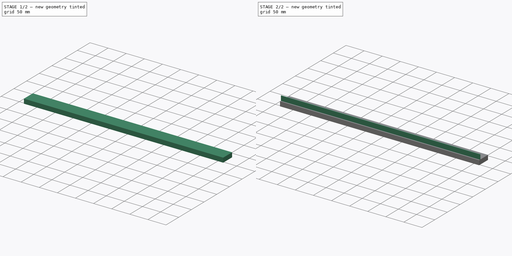
[diagram: build sequence overview — one tinted view per stage of 2, left to right]
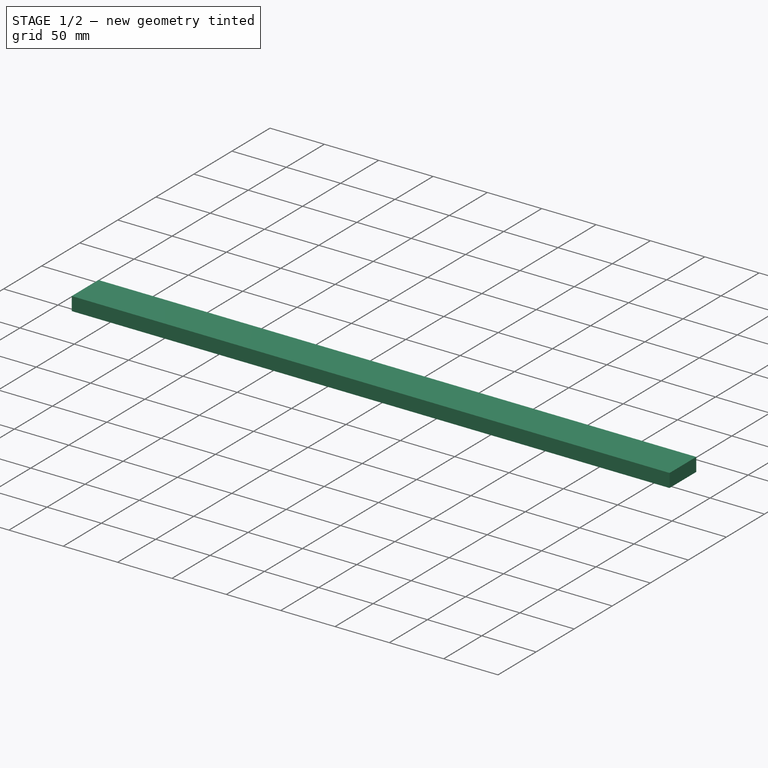
[diagram: stage 1 of 2 — iso view after this stage's code; geometry added in this stage tinted green]
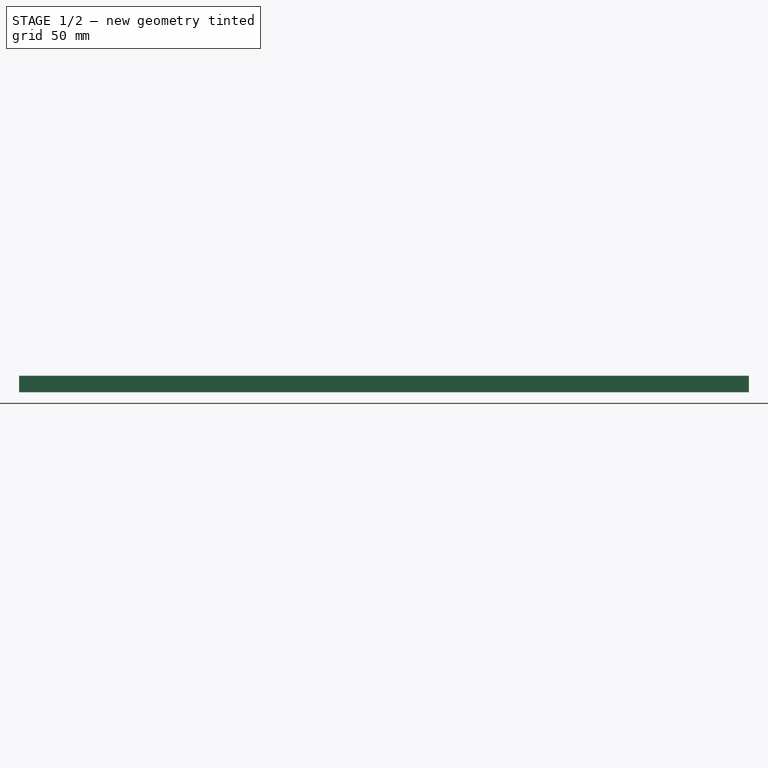
[diagram: stage 1 of 2 — front view after this stage's code; geometry added in this stage tinted green]
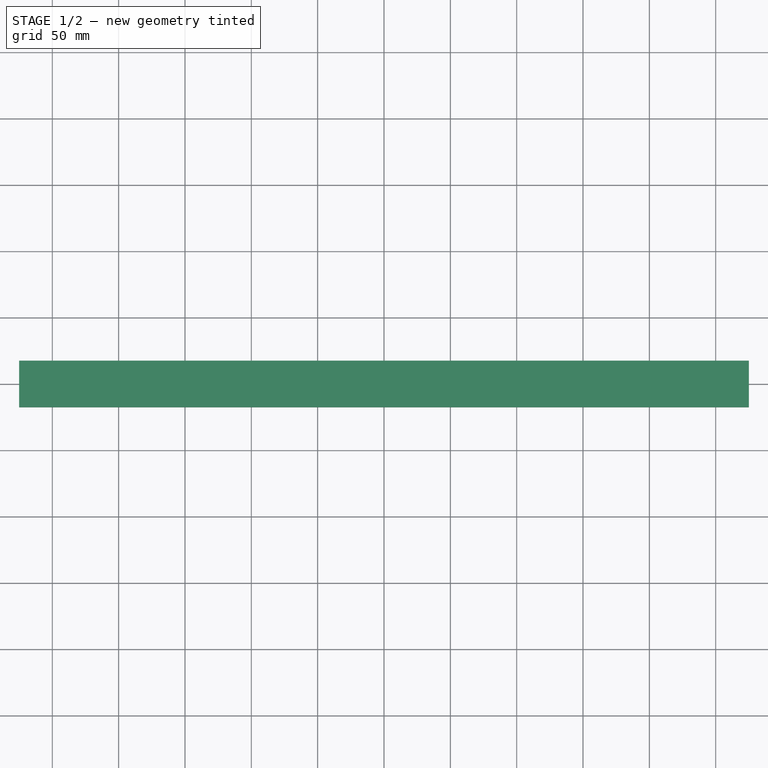
[diagram: stage 1 of 2 — top view after this stage's code; geometry added in this stage tinted green]
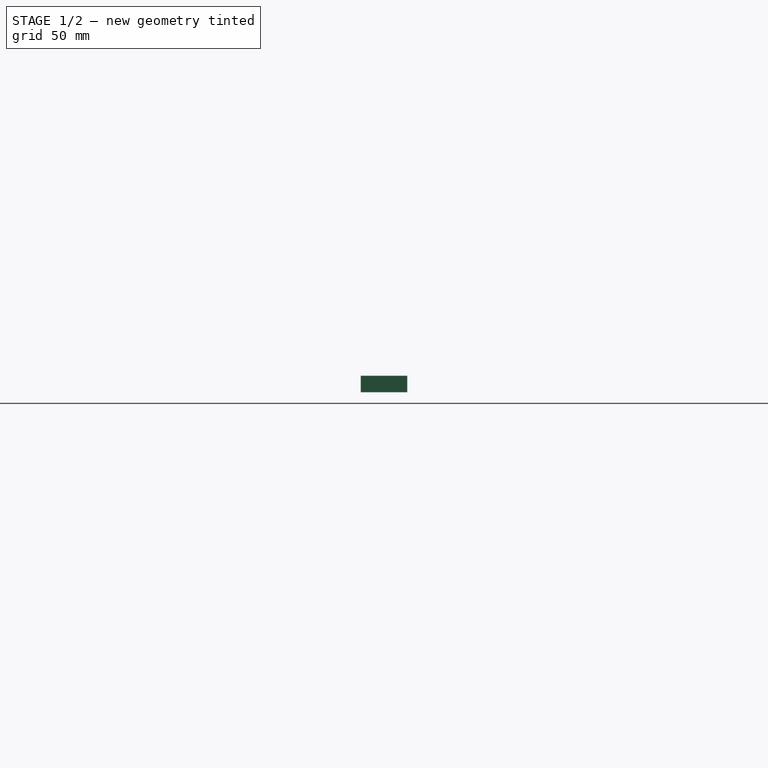
[diagram: stage 1 of 2 — right view after this stage's code; geometry added in this stage tinted green]
FCSTD DOCUMENT  (FreeCAD 1.0RUnknown)
Label: hettich_rail_550mm
Comment: https://www.hornbach.de/p/schubladenschiene-teilauszug-rollschubfuehrung-550-mm-weiss-2-stueck/2460971/
License: All rights reserved
objects: Sketcher::SketchObject×2, PartDesign::Pad×2, PartDesign::CoordinateSystem×2, PartDesign::Body×1
note: 13 computed .brp shape members not serialized (recipe doc carries the construction recipe); baked Part::Feature solids carry a one-line shape summary decoded from their .brp

FEATURE [Sketcher::SketchObject] Sketch
  ArcFitTolerance = 1e-06
  AttachmentSupport = -> [XY_Plane]
  FullyConstrained = true
  MakeInternals = false
  MapMode = 5
  sketch-geometry (5):
    g0: LineSegment StartX=-275 StartY=-17.5 StartZ=0 EndX=275 EndY=-17.5 EndZ=0
    g1: LineSegment StartX=275 StartY=-17.5 StartZ=0 EndX=275 EndY=17.5 EndZ=0
    g2: LineSegment StartX=275 StartY=17.5 StartZ=0 EndX=-275 EndY=17.5 EndZ=0
    g3: LineSegment StartX=-275 StartY=17.5 StartZ=0 EndX=-275 EndY=-17.5 EndZ=0
    g4: GeomPoint [constr] X=0 Y=0 Z=0
  constraints (12):
    c: Coincident(g0,g1)
    c: Coincident(g1,g2)
    c: Coincident(g2,g3)
    c: Coincident(g3,g0)
    c: Horizontal(g0)
    c: Horizontal(g2)
    c: Vertical(g1)
    c: Vertical(g3)
    c: Symmetric(g2,g0,g4)
    c: Distance(g1,g3) = 550
    c: Distance(g0,g2) = 35
    c: Coincident(g4,g-1)
FEATURE [PartDesign::Pad] Pad
  Direction = (0,0,1)
  Length = 12.5
  Length2 = 10
  Profile = -> Sketch
  ReferenceAxis = -> Sketch [N_Axis]
  Refine = true
  Suppressed = false
  Type = 0
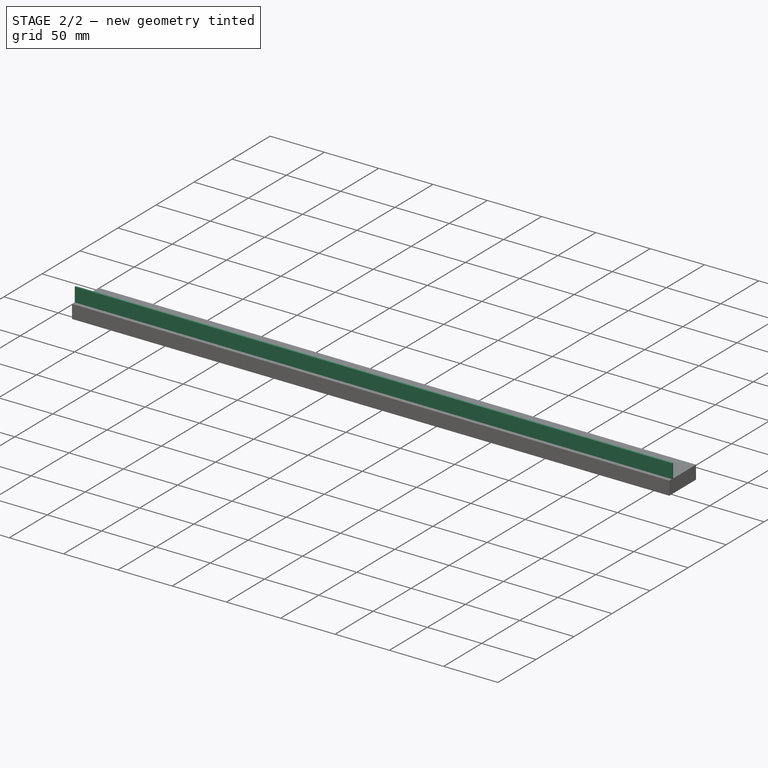
[diagram: stage 2 of 2 — iso view after this stage's code; geometry added in this stage tinted green]
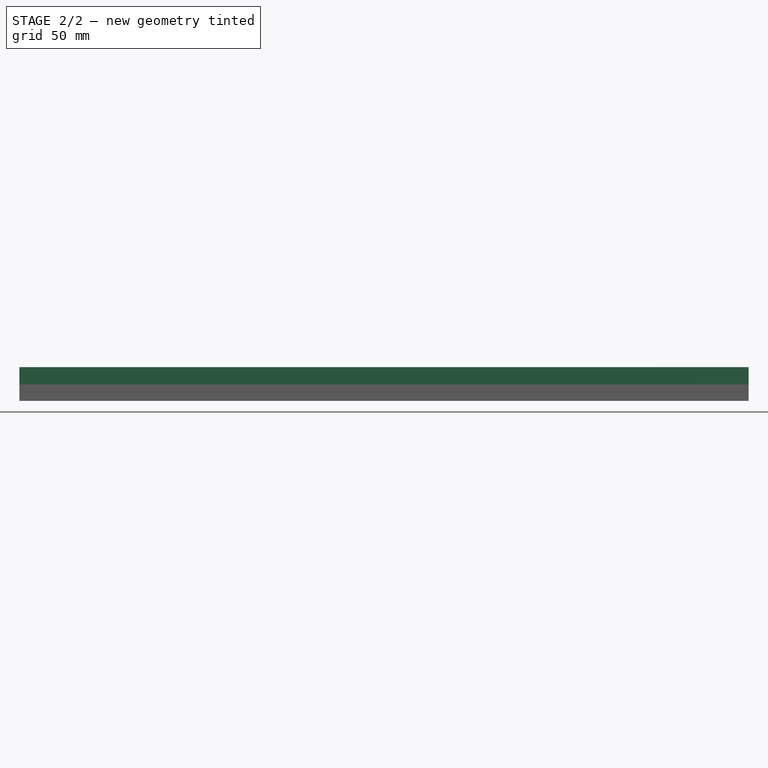
[diagram: stage 2 of 2 — front view after this stage's code; geometry added in this stage tinted green]
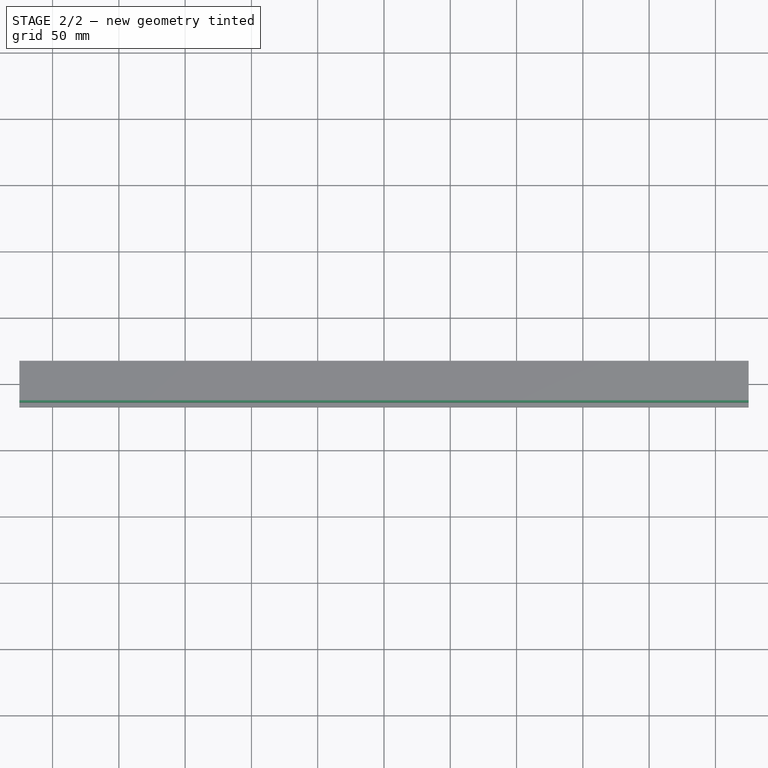
[diagram: stage 2 of 2 — top view after this stage's code; geometry added in this stage tinted green]
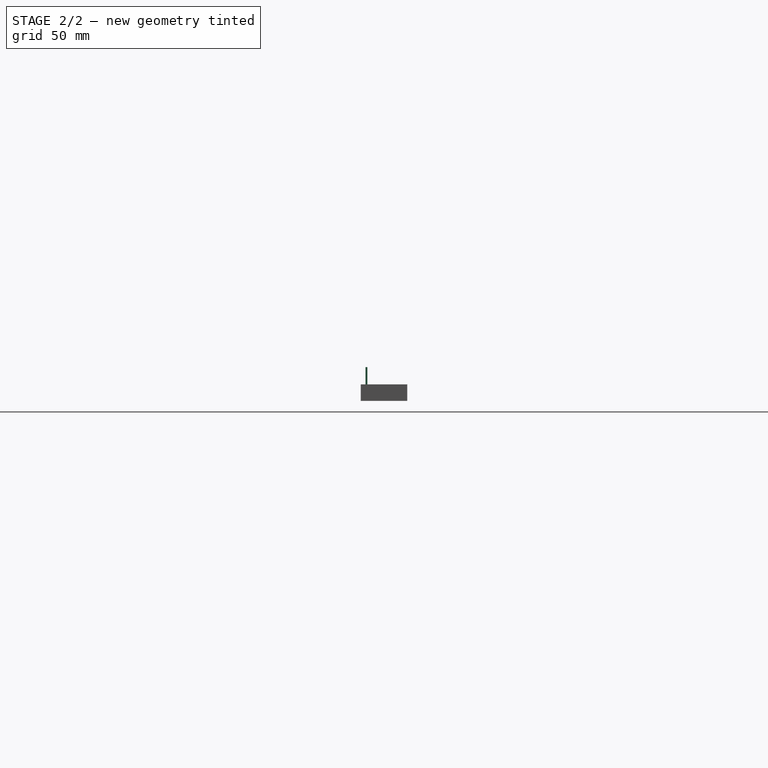
[diagram: stage 2 of 2 — right view after this stage's code; geometry added in this stage tinted green]
FEATURE [Sketcher::SketchObject] Sketch001
  ArcFitTolerance = 1e-06
  AttachmentSupport = -> [Pad]
  ExternalGeometry = -> [Pad]
  FullyConstrained = true
  MakeInternals = false
  MapMode = 5
  Placement = pos=(0,0,12.5) rot=(0,0,1;0rad)
  sketch-geometry (4):
    g0: LineSegment StartX=-275 StartY=-14 StartZ=0 EndX=275 EndY=-14 EndZ=0
    g1: LineSegment StartX=275 StartY=-14 StartZ=0 EndX=275 EndY=-12.5 EndZ=0
    g2: LineSegment StartX=275 StartY=-12.5 StartZ=0 EndX=-275 EndY=-12.5 EndZ=0
    g3: LineSegment StartX=-275 StartY=-12.5 StartZ=0 EndX=-275 EndY=-14 EndZ=0
  constraints (12):
    c: Coincident(g0,g1)
    c: Coincident(g1,g2)
    c: Coincident(g2,g3)
    c: Coincident(g3,g0)
    c: Horizontal(g0)
    c: Horizontal(g2)
    c: Vertical(g1)
    c: Vertical(g3)
    c: PointOnObject(g0,g-4)
    c: PointOnObject(g1,g-3)
    c: DistanceY(g1,g1) = 1.5
    c: DistanceY(g-3,g1) = 5
FEATURE [PartDesign::Pad] Pad001
  BaseFeature = -> Pad
  Direction = (0,0,1)
  Length = 13
  Length2 = 10
  Profile = -> Sketch001
  ReferenceAxis = -> Sketch001 [N_Axis]
  Refine = true
  Suppressed = false
  Type = 0
FEATURE [PartDesign::CoordinateSystem] LCS_left_center
  AttacherType = Attacher::AttachEngine3D
  AttachmentSupport = -> [Pad001]
  MapMode = 45
  Placement = pos=(1.42e-14,-17.5,0) rot=(0.57735,0.57735,0.57735;2.0944rad)
FEATURE [PartDesign::CoordinateSystem] LCS_inner_center
  AttacherType = Attacher::AttachEngine3D
  AttachmentSupport = -> [Pad001]
  MapMode = 45
  Placement = pos=(-1.42e-14,-12.5,12.5) rot=(0.57735,0.57735,0.57735;2.0944rad)
FEATURE [PartDesign::Body] Body  label="hettich_rail_550"
  AllowCompound = false
  Group = -> [Sketch,Pad,Sketch001,Pad001,LCS_left_center,LCS_inner_center]
  Origin = -> Origin
  Tip = -> Pad001
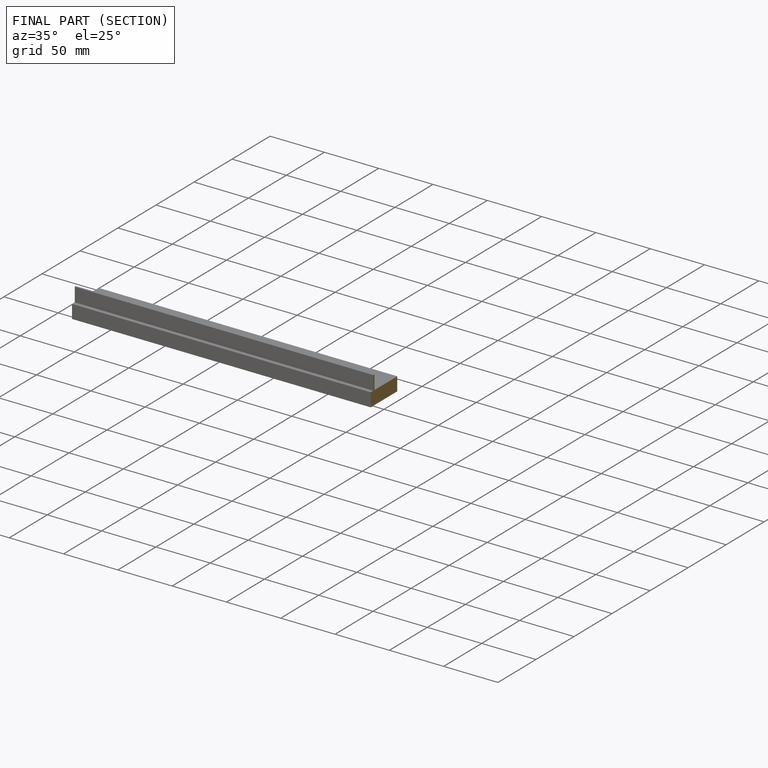
[diagram: finished part — half-section view (interior)]
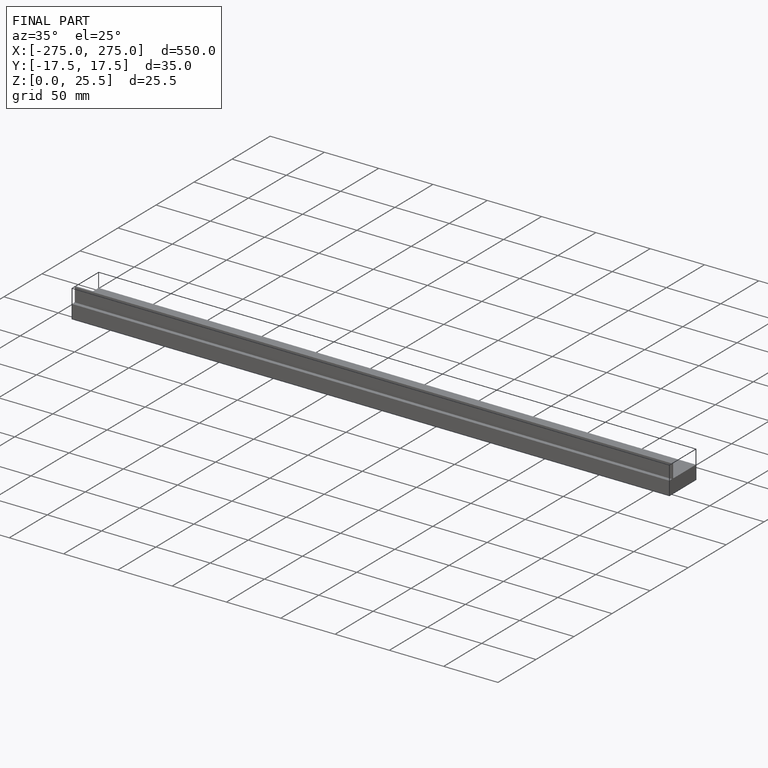
[diagram: finished part — iso view with bounding-box wireframe]
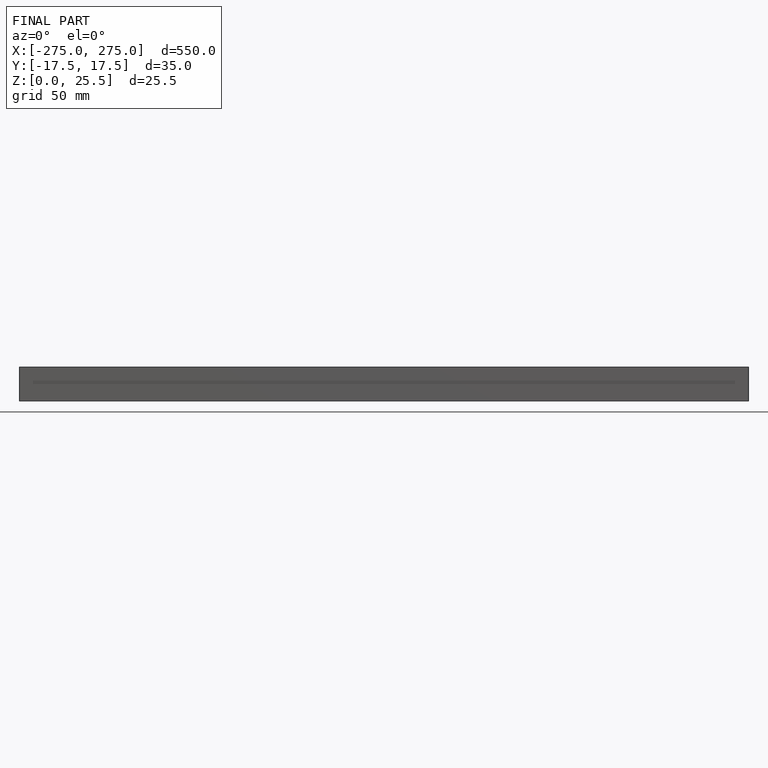
[diagram: finished part — front view with bounding-box wireframe]
